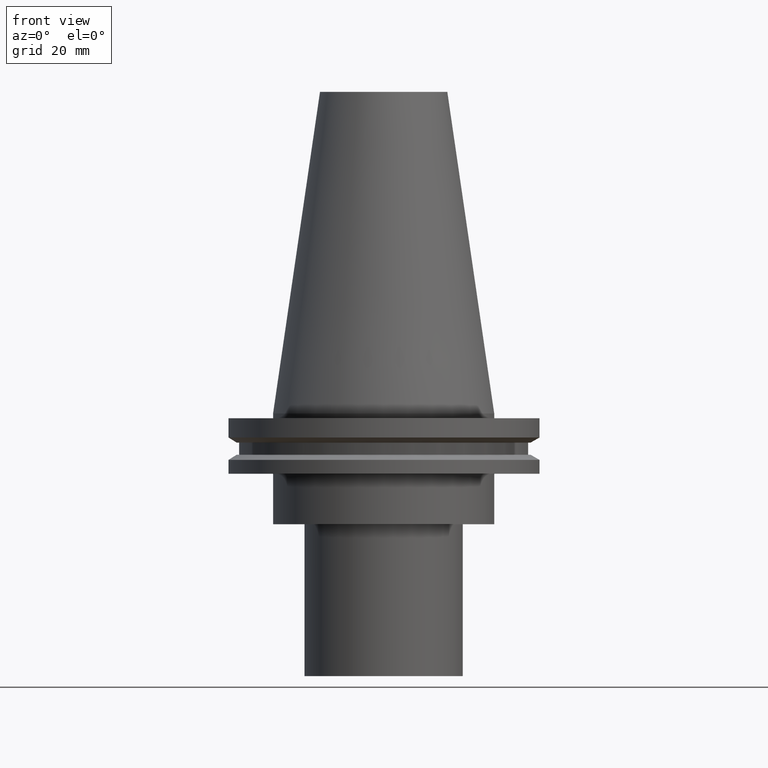
[diagram: clean part render]
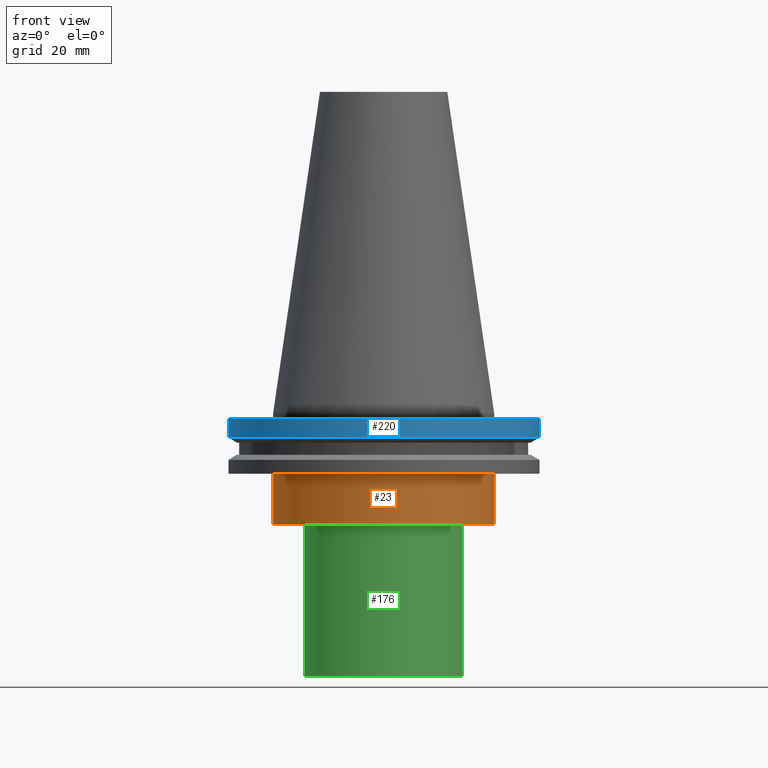
[diagram: same view with three faces highlighted in distinct colors, each labeled with its STEP entity id]
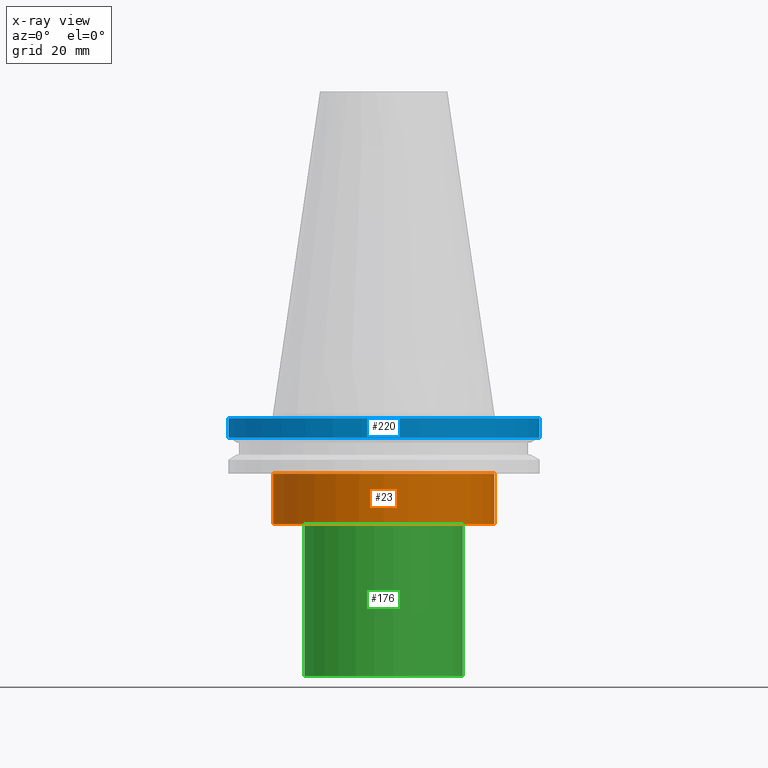
[diagram: x-ray of the same camera — body ghosted, the three highlighted faces saturated]
A machine part, front view with three faces highlighted in distinct colors.
The next image is the same camera in x-ray (body ghosted, the three faces saturated) — at least one of them is partly hidden behind the body in this view.
Their STEP definitions:

[orange] entity #23 — the highlighted cylindrical surface (bore or boss wall) has radius 34.925 mm, axis along (-0, -0, 1).
#18 = AXIS2_PLACEMENT_3D ( 'NONE', #323, #24, #356 ) ;
#23 = ADVANCED_FACE ( 'NONE', ( #243, #178 ), #364, .T. ) ;
#24 = DIRECTION ( 'NONE',  ( -0.000000000000000000, -0.000000000000000000, 1.000000000000000000 ) ) ;
#38 = DIRECTION ( 'NONE',  ( 1.000000000000000000, 0.000000000000000000, 0.000000000000000000 ) ) ;
#94 = DIRECTION ( 'NONE',  ( -0.000000000000000000, -0.000000000000000000, 1.000000000000000000 ) ) ;
#114 = AXIS2_PLACEMENT_3D ( 'NONE', #207, #306, #275 ) ;
#137 = CIRCLE ( 'NONE', #194, 34.92499999999999716 ) ;
#147 = CARTESIAN_POINT ( 'NONE',  ( 34.92499999999999716, 0.000000000000000000, -19.04999999999999716 ) ) ;
#161 = EDGE_CURVE ( 'NONE', #335, #335, #137, .T. ) ;
#178 = FACE_OUTER_BOUND ( 'NONE', #362, .T. ) ;
#194 = AXIS2_PLACEMENT_3D ( 'NONE', #253, #94, #38 ) ;
#201 = ORIENTED_EDGE ( 'NONE', *, *, #161, .F. ) ;
#206 = CIRCLE ( 'NONE', #18, 34.92499999999999716 ) ;
#207 = CARTESIAN_POINT ( 'NONE',  ( 0.000000000000000000, 0.000000000000000000, 101.5999999999999943 ) ) ;
#218 = CARTESIAN_POINT ( 'NONE',  ( 34.92499999999999716, 0.000000000000000000, -35.00000000000000000 ) ) ;
#243 = FACE_OUTER_BOUND ( 'NONE', #303, .T. ) ;
#253 = CARTESIAN_POINT ( 'NONE',  ( 0.000000000000000000, 0.000000000000000000, -19.04999999999999716 ) ) ;
#267 = EDGE_CURVE ( 'NONE', #318, #318, #206, .T. ) ;
#272 = ORIENTED_EDGE ( 'NONE', *, *, #267, .T. ) ;
#275 = DIRECTION ( 'NONE',  ( 1.000000000000000000, 0.000000000000000000, 0.000000000000000000 ) ) ;
#303 = EDGE_LOOP ( 'NONE', ( #201 ) ) ;
#306 = DIRECTION ( 'NONE',  ( -0.000000000000000000, -0.000000000000000000, 1.000000000000000000 ) ) ;
#318 = VERTEX_POINT ( 'NONE', #218 ) ;
#323 = CARTESIAN_POINT ( 'NONE',  ( 0.000000000000000000, 0.000000000000000000, -35.00000000000000000 ) ) ;
#335 = VERTEX_POINT ( 'NONE', #147 ) ;
#356 = DIRECTION ( 'NONE',  ( 1.000000000000000000, 0.000000000000000000, 0.000000000000000000 ) ) ;
#362 = EDGE_LOOP ( 'NONE', ( #272 ) ) ;
#364 = CYLINDRICAL_SURFACE ( 'NONE', #114, 34.92499999999999716 ) ;

[blue] entity #220 — the highlighted cylindrical surface (bore or boss wall) has radius 49.215 mm, axis along (-0, -0, 1).
#60 = CIRCLE ( 'NONE', #270, 49.21499999999999631 ) ;
#75 = CYLINDRICAL_SURFACE ( 'NONE', #78, 49.21499999999999631 ) ;
#78 = AXIS2_PLACEMENT_3D ( 'NONE', #230, #384, #291 ) ;
#92 = FACE_OUTER_BOUND ( 'NONE', #331, .T. ) ;
#99 = DIRECTION ( 'NONE',  ( 1.000000000000000000, 0.000000000000000000, 0.000000000000000000 ) ) ;
#102 = EDGE_LOOP ( 'NONE', ( #294 ) ) ;
#205 = CARTESIAN_POINT ( 'NONE',  ( 0.000000000000000000, 0.000000000000000000, -1.499999999999987566 ) ) ;
#220 = ADVANCED_FACE ( 'NONE', ( #92, #352 ), #75, .T. ) ;
#226 = EDGE_CURVE ( 'NONE', #307, #307, #245, .T. ) ;
#230 = CARTESIAN_POINT ( 'NONE',  ( 0.000000000000000000, 0.000000000000000000, 101.5999999999999943 ) ) ;
#234 = DIRECTION ( 'NONE',  ( -0.000000000000000000, -0.000000000000000000, 1.000000000000000000 ) ) ;
#245 = CIRCLE ( 'NONE', #339, 49.21500000000000341 ) ;
#248 = CARTESIAN_POINT ( 'NONE',  ( 49.21500000000000341, 0.000000000000000000, -7.602389855251287187 ) ) ;
#266 = DIRECTION ( 'NONE',  ( 1.000000000000000000, 0.000000000000000000, 0.000000000000000000 ) ) ;
#270 = AXIS2_PLACEMENT_3D ( 'NONE', #205, #234, #266 ) ;
#279 = CARTESIAN_POINT ( 'NONE',  ( 49.21499999999999631, 0.000000000000000000, -1.499999999999987566 ) ) ;
#291 = DIRECTION ( 'NONE',  ( 1.000000000000000000, 0.000000000000000000, 0.000000000000000000 ) ) ;
#294 = ORIENTED_EDGE ( 'NONE', *, *, #226, .T. ) ;
#307 = VERTEX_POINT ( 'NONE', #248 ) ;
#312 = VERTEX_POINT ( 'NONE', #279 ) ;
#324 = DIRECTION ( 'NONE',  ( -0.000000000000000000, -0.000000000000000000, 1.000000000000000000 ) ) ;
#331 = EDGE_LOOP ( 'NONE', ( #366 ) ) ;
#339 = AXIS2_PLACEMENT_3D ( 'NONE', #391, #324, #99 ) ;
#352 = FACE_OUTER_BOUND ( 'NONE', #102, .T. ) ;
#366 = ORIENTED_EDGE ( 'NONE', *, *, #372, .F. ) ;
#372 = EDGE_CURVE ( 'NONE', #312, #312, #60, .T. ) ;
#384 = DIRECTION ( 'NONE',  ( -0.000000000000000000, -0.000000000000000000, 1.000000000000000000 ) ) ;
#391 = CARTESIAN_POINT ( 'NONE',  ( 0.000000000000000000, 0.000000000000000000, -7.602389855251287187 ) ) ;

[green] entity #176 — the highlighted cylindrical surface (bore or boss wall) has radius 25 mm, axis along (-0, -0, 1).
#10 = CARTESIAN_POINT ( 'NONE',  ( 0.000000000000000000, 0.000000000000000000, -82.99999999999995737 ) ) ;
#64 = CARTESIAN_POINT ( 'NONE',  ( 25.00000000000000000, 0.000000000000000000, -82.99999999999995737 ) ) ;
#72 = DIRECTION ( 'NONE',  ( -0.000000000000000000, -0.000000000000000000, 1.000000000000000000 ) ) ;
#87 = VERTEX_POINT ( 'NONE', #64 ) ;
#90 = FACE_OUTER_BOUND ( 'NONE', #105, .T. ) ;
#96 = CARTESIAN_POINT ( 'NONE',  ( 0.000000000000000000, 0.000000000000000000, 0.000000000000000000 ) ) ;
#105 = EDGE_LOOP ( 'NONE', ( #308 ) ) ;
#130 = DIRECTION ( 'NONE',  ( 1.000000000000000000, 0.000000000000000000, 0.000000000000000000 ) ) ;
#136 = EDGE_LOOP ( 'NONE', ( #199 ) ) ;
#156 = CIRCLE ( 'NONE', #196, 25.00000000000000000 ) ;
#165 = AXIS2_PLACEMENT_3D ( 'NONE', #96, #191, #278 ) ;
#176 = ADVANCED_FACE ( 'NONE', ( #216, #90 ), #380, .T. ) ;
#181 = CIRCLE ( 'NONE', #189, 25.00000000000000000 ) ;
#187 = VERTEX_POINT ( 'NONE', #274 ) ;
#189 = AXIS2_PLACEMENT_3D ( 'NONE', #235, #72, #130 ) ;
#191 = DIRECTION ( 'NONE',  ( -0.000000000000000000, -0.000000000000000000, 1.000000000000000000 ) ) ;
#196 = AXIS2_PLACEMENT_3D ( 'NONE', #10, #251, #374 ) ;
#199 = ORIENTED_EDGE ( 'NONE', *, *, #282, .F. ) ;
#210 = EDGE_CURVE ( 'NONE', #87, #87, #156, .T. ) ;
#216 = FACE_OUTER_BOUND ( 'NONE', #136, .T. ) ;
#235 = CARTESIAN_POINT ( 'NONE',  ( 0.000000000000000000, 0.000000000000000000, -35.00000000000000000 ) ) ;
#251 = DIRECTION ( 'NONE',  ( -0.000000000000000000, -0.000000000000000000, 1.000000000000000000 ) ) ;
#274 = CARTESIAN_POINT ( 'NONE',  ( 25.00000000000000000, 0.000000000000000000, -35.00000000000000000 ) ) ;
#278 = DIRECTION ( 'NONE',  ( 1.000000000000000000, 0.000000000000000000, 0.000000000000000000 ) ) ;
#282 = EDGE_CURVE ( 'NONE', #187, #187, #181, .T. ) ;
#308 = ORIENTED_EDGE ( 'NONE', *, *, #210, .T. ) ;
#374 = DIRECTION ( 'NONE',  ( 1.000000000000000000, 0.000000000000000000, 0.000000000000000000 ) ) ;
#380 = CYLINDRICAL_SURFACE ( 'NONE', #165, 25.00000000000000000 ) ;